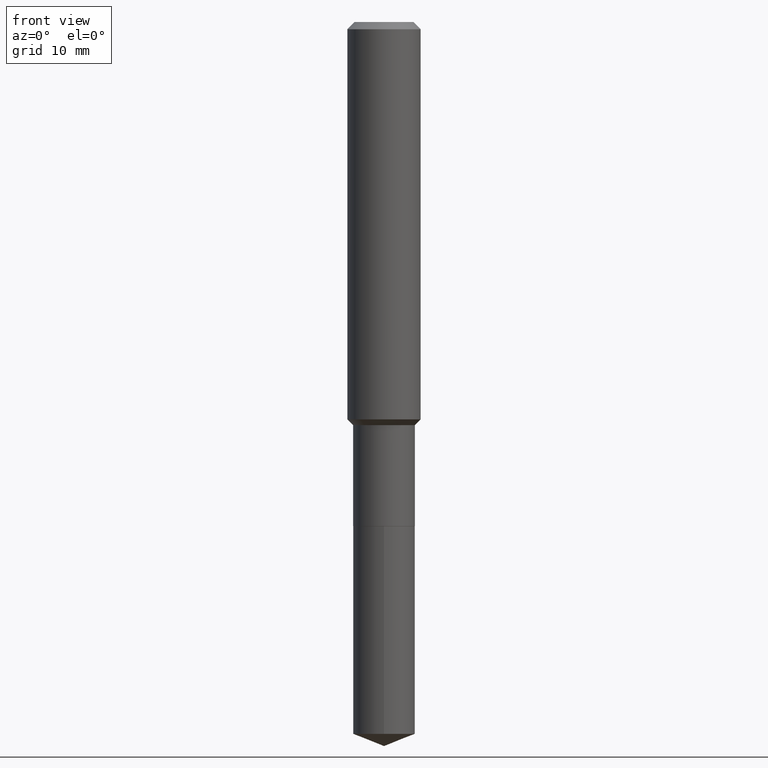
[diagram: clean part render]
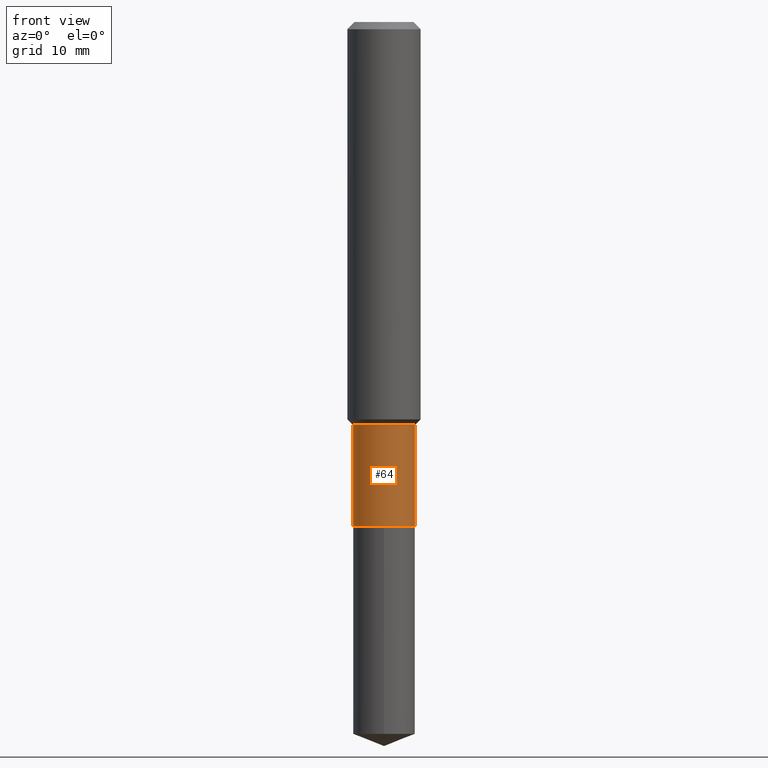
[diagram: same view with one face highlighted and labeled with its STEP entity id]
A machine part, front view. The second image highlights one B-rep face of the part: STEP entity #64.
In plain terms, the highlighted cylindrical surface (edge-blend (fillet) strip) has radius 3.3744 mm, axis along (-0, 0, 1).
Its self-contained STEP definition (entity closure, byte-faithful):
#11 = EDGE_CURVE ( 'NONE', #195, #238, #371, .T. ) ;
#40 = CARTESIAN_POINT ( 'NONE',  ( -0.1328499999999999404, -5.858322493943866365E-15, -1.731700000000000017 ) ) ;
#64 = ADVANCED_FACE ( 'NONE', ( #323 ), #173, .T. ) ;
#80 = CARTESIAN_POINT ( 'NONE',  ( 0.1328499999999999959, -8.486045394058262536E-15, -2.164800000000000058 ) ) ;
#95 = CARTESIAN_POINT ( 'NONE',  ( 0.000000000000000000, 0.000000000000000000, 0.000000000000000000 ) ) ;
#104 = DIRECTION ( 'NONE',  ( -2.445468806185136597E-29, 3.491481338843145583E-15, 1.000000000000000000 ) ) ;
#110 = CARTESIAN_POINT ( 'NONE',  ( -0.1328499999999999959, -5.858322493943866365E-15, -2.164800000000000058 ) ) ;
#117 = AXIS2_PLACEMENT_3D ( 'NONE', #95, #104, #249 ) ;
#122 = EDGE_CURVE ( 'NONE', #238, #237, #454, .T. ) ;
#133 = CARTESIAN_POINT ( 'NONE',  ( -0.1328499999999999681, 9.439560244572928704E-16, -6.534805267403641141E-30 ) ) ;
#136 = AXIS2_PLACEMENT_3D ( 'NONE', #226, #305, #262 ) ;
#143 = ORIENTED_EDGE ( 'NONE', *, *, #261, .T. ) ;
#146 = VECTOR ( 'NONE', #415, 39.37007874015748143 ) ;
#152 = LINE ( 'NONE', #260, #146 ) ;
#153 = AXIS2_PLACEMENT_3D ( 'NONE', #419, #266, #420 ) ;
#173 = CYLINDRICAL_SURFACE ( 'NONE', #117, 0.1328499999999999681 ) ;
#195 = VERTEX_POINT ( 'NONE', #110 ) ;
#205 = EDGE_CURVE ( 'NONE', #195, #272, #216, .T. ) ;
#216 = CIRCLE ( 'NONE', #136, 0.1328499999999999959 ) ;
#219 = DIRECTION ( 'NONE',  ( -2.445468806185136877E-29, 3.491481338843145188E-15, 1.000000000000000000 ) ) ;
#226 = CARTESIAN_POINT ( 'NONE',  ( 5.293950871629583880E-29, -7.558358802327641618E-15, -2.164800000000000058 ) ) ;
#237 = VERTEX_POINT ( 'NONE', #448 ) ;
#238 = VERTEX_POINT ( 'NONE', #40 ) ;
#249 = DIRECTION ( 'NONE',  ( 1.000000000000000000, -6.982962677686266711E-15, 4.876176775795935232E-29 ) ) ;
#260 = CARTESIAN_POINT ( 'NONE',  ( 0.1328499999999999681, -9.276865917306203258E-16, 6.478000846644898476E-30 ) ) ;
#261 = EDGE_CURVE ( 'NONE', #272, #237, #152, .T. ) ;
#262 = DIRECTION ( 'NONE',  ( 1.000000000000000000, -6.982962677686266711E-15, 0.000000000000000000 ) ) ;
#266 = DIRECTION ( 'NONE',  ( -2.445468806185136597E-29, 3.491481338843145583E-15, 1.000000000000000000 ) ) ;
#272 = VERTEX_POINT ( 'NONE', #80 ) ;
#296 = ORIENTED_EDGE ( 'NONE', *, *, #122, .F. ) ;
#305 = DIRECTION ( 'NONE',  ( -2.445468806185136597E-29, 3.491481338843145583E-15, 1.000000000000000000 ) ) ;
#323 = FACE_OUTER_BOUND ( 'NONE', #472, .T. ) ;
#347 = ORIENTED_EDGE ( 'NONE', *, *, #11, .F. ) ;
#359 = VECTOR ( 'NONE', #219, 39.37007874015748143 ) ;
#371 = LINE ( 'NONE', #133, #359 ) ;
#387 = ORIENTED_EDGE ( 'NONE', *, *, #205, .T. ) ;
#415 = DIRECTION ( 'NONE',  ( -2.445468806185136877E-29, 3.491481338843145188E-15, 1.000000000000000000 ) ) ;
#419 = CARTESIAN_POINT ( 'NONE',  ( 4.234818331670801367E-29, -6.046198234474675274E-15, -1.731700000000000017 ) ) ;
#420 = DIRECTION ( 'NONE',  ( 1.000000000000000000, -6.982962677686269866E-15, 0.000000000000000000 ) ) ;
#448 = CARTESIAN_POINT ( 'NONE',  ( 0.1328499999999999404, -6.973884826205296191E-15, -1.731700000000000017 ) ) ;
#454 = CIRCLE ( 'NONE', #153, 0.1328499999999999404 ) ;
#472 = EDGE_LOOP ( 'NONE', ( #347, #387, #143, #296 ) ) ;